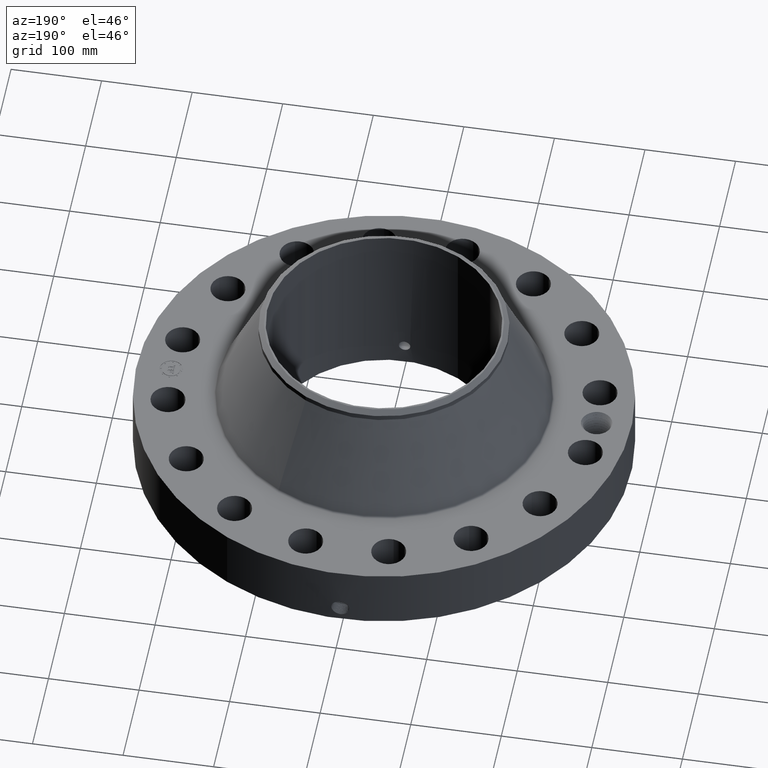
[diagram: clean part render]
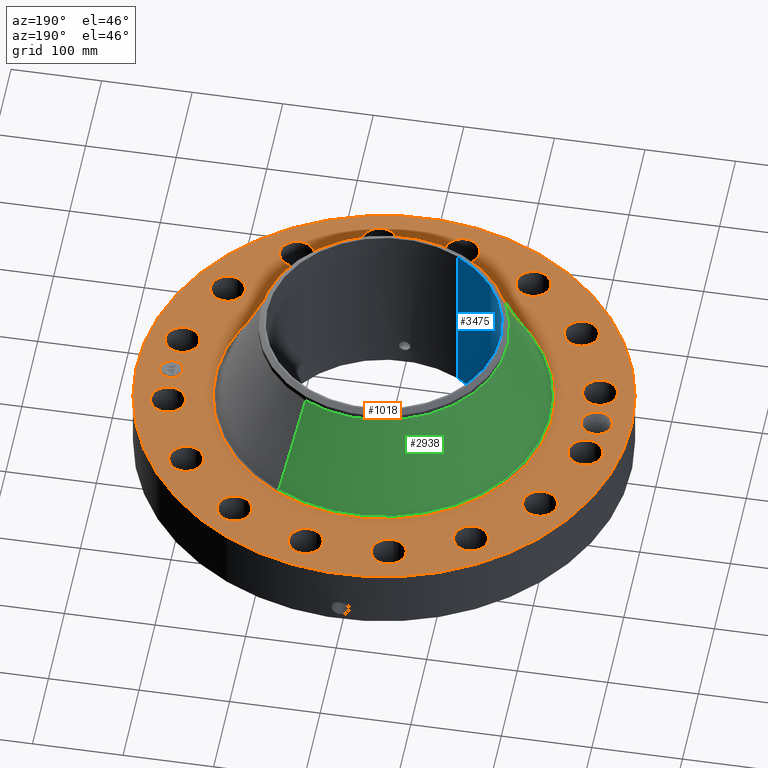
[diagram: same view with three faces highlighted in distinct colors, each labeled with its STEP entity id]
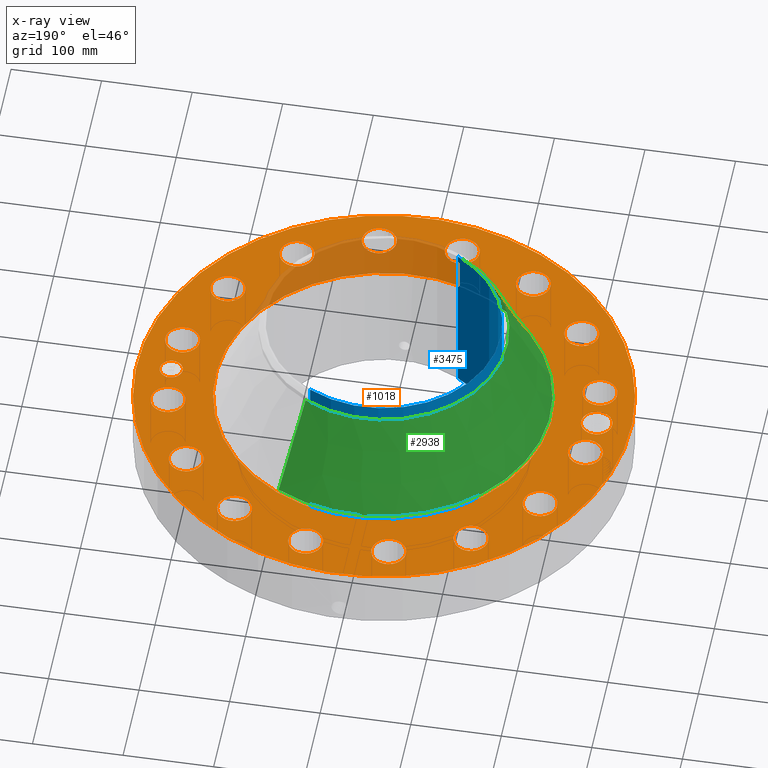
[diagram: x-ray of the same camera — body ghosted, the three highlighted faces saturated]
A machine part, auxiliary view with three faces highlighted in distinct colors.
The next image is the same camera in x-ray (body ghosted, the three faces saturated) — at least one of them is partly hidden behind the body in this view.
Their STEP definitions:

[orange] entity #1018 — the highlighted planar face has unit normal (0, 0, -1).
#58=AXIS2_PLACEMENT_3D('Circle Axis2P3D',#56,#57,$) ;
#542=AXIS2_PLACEMENT_3D('Circle Axis2P3D',#540,#541,$) ;
#642=AXIS2_PLACEMENT_3D('Plane Axis2P3D',#639,#640,#641) ;
#678=AXIS2_PLACEMENT_3D('Circle Axis2P3D',#676,#677,$) ;
#685=AXIS2_PLACEMENT_3D('Circle Axis2P3D',#683,#684,$) ;
#696=AXIS2_PLACEMENT_3D('Circle Axis2P3D',#694,#695,$) ;
#705=AXIS2_PLACEMENT_3D('Circle Axis2P3D',#703,#704,$) ;
#714=AXIS2_PLACEMENT_3D('Circle Axis2P3D',#712,#713,$) ;
#723=AXIS2_PLACEMENT_3D('Circle Axis2P3D',#721,#722,$) ;
#732=AXIS2_PLACEMENT_3D('Circle Axis2P3D',#730,#731,$) ;
#741=AXIS2_PLACEMENT_3D('Circle Axis2P3D',#739,#740,$) ;
#750=AXIS2_PLACEMENT_3D('Circle Axis2P3D',#748,#749,$) ;
#759=AXIS2_PLACEMENT_3D('Circle Axis2P3D',#757,#758,$) ;
#768=AXIS2_PLACEMENT_3D('Circle Axis2P3D',#766,#767,$) ;
#777=AXIS2_PLACEMENT_3D('Circle Axis2P3D',#775,#776,$) ;
#786=AXIS2_PLACEMENT_3D('Circle Axis2P3D',#784,#785,$) ;
#795=AXIS2_PLACEMENT_3D('Circle Axis2P3D',#793,#794,$) ;
#804=AXIS2_PLACEMENT_3D('Circle Axis2P3D',#802,#803,$) ;
#813=AXIS2_PLACEMENT_3D('Circle Axis2P3D',#811,#812,$) ;
#822=AXIS2_PLACEMENT_3D('Circle Axis2P3D',#820,#821,$) ;
#831=AXIS2_PLACEMENT_3D('Circle Axis2P3D',#829,#830,$) ;
#840=AXIS2_PLACEMENT_3D('Circle Axis2P3D',#838,#839,$) ;
#849=AXIS2_PLACEMENT_3D('Circle Axis2P3D',#847,#848,$) ;
#858=AXIS2_PLACEMENT_3D('Circle Axis2P3D',#856,#857,$) ;
#867=AXIS2_PLACEMENT_3D('Circle Axis2P3D',#865,#866,$) ;
#876=AXIS2_PLACEMENT_3D('Circle Axis2P3D',#874,#875,$) ;
#885=AXIS2_PLACEMENT_3D('Circle Axis2P3D',#883,#884,$) ;
#894=AXIS2_PLACEMENT_3D('Circle Axis2P3D',#892,#893,$) ;
#903=AXIS2_PLACEMENT_3D('Circle Axis2P3D',#901,#902,$) ;
#912=AXIS2_PLACEMENT_3D('Circle Axis2P3D',#910,#911,$) ;
#921=AXIS2_PLACEMENT_3D('Circle Axis2P3D',#919,#920,$) ;
#930=AXIS2_PLACEMENT_3D('Circle Axis2P3D',#928,#929,$) ;
#939=AXIS2_PLACEMENT_3D('Circle Axis2P3D',#937,#938,$) ;
#948=AXIS2_PLACEMENT_3D('Circle Axis2P3D',#946,#947,$) ;
#957=AXIS2_PLACEMENT_3D('Circle Axis2P3D',#955,#956,$) ;
#966=AXIS2_PLACEMENT_3D('Circle Axis2P3D',#964,#965,$) ;
#975=AXIS2_PLACEMENT_3D('Circle Axis2P3D',#973,#974,$) ;
#984=AXIS2_PLACEMENT_3D('Circle Axis2P3D',#982,#983,$) ;
#993=AXIS2_PLACEMENT_3D('Circle Axis2P3D',#991,#992,$) ;
#1002=AXIS2_PLACEMENT_3D('Circle Axis2P3D',#1000,#1001,$) ;
#1011=AXIS2_PLACEMENT_3D('Circle Axis2P3D',#1009,#1010,$) ;
#53=CARTESIAN_POINT('Vertex',(-5.15382454002,-9.43401254036,3.00000000001)) ;
#56=CARTESIAN_POINT('Axis2P3D Location',(0.,0.,3.00000000001)) ;
#60=CARTESIAN_POINT('Vertex',(5.15382454002,9.43401254036,3.00000000001)) ;
#540=CARTESIAN_POINT('Axis2P3D Location',(0.,0.,3.00000000001)) ;
#639=CARTESIAN_POINT('Axis2P3D Location',(0.,10.75,3.00000000001)) ;
#649=CARTESIAN_POINT('Control Point',(-8.56250000003,0.,3.00000000001)) ;
#650=CARTESIAN_POINT('Control Point',(-8.56486308622,0.0644949363337,3.00000000001)) ;
#651=CARTESIAN_POINT('Control Point',(-8.57479440552,0.128582344866,3.00000000001)) ;
#652=CARTESIAN_POINT('Control Point',(-8.59223336689,0.191067000168,3.00000000001)) ;
#653=CARTESIAN_POINT('Control Point',(-8.62965644107,0.281919288805,3.00000000001)) ;
#654=CARTESIAN_POINT('Control Point',(-8.68225432957,0.36394630169,3.00000000001)) ;
#655=CARTESIAN_POINT('Control Point',(-8.70198762267,0.390886934348,3.00000000001)) ;
#656=CARTESIAN_POINT('Control Point',(-8.72331642012,0.416507205326,3.00000000001)) ;
#657=CARTESIAN_POINT('Control Point',(-8.74612160302,0.440684604928,3.00000000001)) ;
#658=CARTESIAN_POINT('Vertex',(-8.56250000003,0.,3.00000000001)) ;
#660=CARTESIAN_POINT('Vertex',(-8.74612160302,0.440684604928,3.00000000001)) ;
#664=CARTESIAN_POINT('Control Point',(-8.56250000003,0.,3.00000000001)) ;
#665=CARTESIAN_POINT('Control Point',(-8.56486374464,-0.0645129057141,3.00000000001)) ;
#666=CARTESIAN_POINT('Control Point',(-8.57479993211,-0.128618054944,3.00000000001)) ;
#667=CARTESIAN_POINT('Control Point',(-8.59223774309,-0.191096216161,3.00000000001)) ;
#668=CARTESIAN_POINT('Control Point',(-8.62967336765,-0.281976941446,3.00000000001)) ;
#669=CARTESIAN_POINT('Control Point',(-8.68226340328,-0.363983261821,3.00000000001)) ;
#670=CARTESIAN_POINT('Control Point',(-8.70202180579,-0.390949652071,3.00000000001)) ;
#671=CARTESIAN_POINT('Control Point',(-8.72337509323,-0.416588152177,3.00000000001)) ;
#672=CARTESIAN_POINT('Control Point',(-8.74620303259,-0.44077769408,3.00000000001)) ;
#673=CARTESIAN_POINT('Vertex',(-8.74620303259,-0.44077769408,3.00000000001)) ;
#676=CARTESIAN_POINT('Axis2P3D Location',(-9.25000000004,0.,3.00000000001)) ;
#680=CARTESIAN_POINT('Vertex',(-9.83745376697,0.320927455543,3.00000000001)) ;
#683=CARTESIAN_POINT('Axis2P3D Location',(-9.25000000004,0.,3.00000000001)) ;
#694=CARTESIAN_POINT('Axis2P3D Location',(9.07226384377,-1.80458547866,3.00000000001)) ;
#698=CARTESIAN_POINT('Vertex',(8.41407692235,-1.4450163247,3.00000000001)) ;
#700=CARTESIAN_POINT('Vertex',(9.73045076519,-2.16415463261,3.00000000001)) ;
#703=CARTESIAN_POINT('Axis2P3D Location',(9.07226384377,-1.80458547866,3.00000000001)) ;
#712=CARTESIAN_POINT('Axis2P3D Location',(0.,0.,3.00000000001)) ;
#716=CARTESIAN_POINT('Vertex',(-3.51274416302,-6.43003505992,3.00000000001)) ;
#718=CARTESIAN_POINT('Vertex',(3.51274416302,6.43003505992,3.00000000001)) ;
#721=CARTESIAN_POINT('Axis2P3D Location',(0.,0.,3.00000000001)) ;
#730=CARTESIAN_POINT('Axis2P3D Location',(7.69109391383,-5.13902465545,3.00000000001)) ;
#734=CARTESIAN_POINT('Vertex',(8.16157818109,-5.72310046754,3.00000000001)) ;
#736=CARTESIAN_POINT('Vertex',(7.22060964657,-4.55494884336,3.00000000001)) ;
#739=CARTESIAN_POINT('Axis2P3D Location',(7.69109391383,-5.13902465545,3.00000000001)) ;
#748=CARTESIAN_POINT('Axis2P3D Location',(5.13902465545,-7.69109391383,3.00000000001)) ;
#752=CARTESIAN_POINT('Vertex',(5.35017930381,-8.41075613632,3.00000000001)) ;
#754=CARTESIAN_POINT('Vertex',(4.92787000709,-6.97143169134,3.00000000001)) ;
#757=CARTESIAN_POINT('Axis2P3D Location',(5.13902465545,-7.69109391383,3.00000000001)) ;
#766=CARTESIAN_POINT('Axis2P3D Location',(1.80458547866,-9.07226384377,3.00000000001)) ;
#770=CARTESIAN_POINT('Vertex',(1.72426412702,-9.81795042704,3.00000000001)) ;
#772=CARTESIAN_POINT('Vertex',(1.88490683029,-8.32657726049,3.00000000001)) ;
#775=CARTESIAN_POINT('Axis2P3D Location',(1.80458547866,-9.07226384377,3.00000000001)) ;
#784=CARTESIAN_POINT('Axis2P3D Location',(-1.80458547866,-9.07226384377,3.00000000001)) ;
#788=CARTESIAN_POINT('Vertex',(-2.16415463261,-9.73045076519,3.00000000001)) ;
#790=CARTESIAN_POINT('Vertex',(-1.4450163247,-8.41407692235,3.00000000001)) ;
#793=CARTESIAN_POINT('Axis2P3D Location',(-1.80458547866,-9.07226384377,3.00000000001)) ;
#802=CARTESIAN_POINT('Axis2P3D Location',(-5.13902465545,-7.69109391383,3.00000000001)) ;
#806=CARTESIAN_POINT('Vertex',(-5.72310046754,-8.16157818109,3.00000000001)) ;
#808=CARTESIAN_POINT('Vertex',(-4.55494884336,-7.22060964657,3.00000000001)) ;
#811=CARTESIAN_POINT('Axis2P3D Location',(-5.13902465545,-7.69109391383,3.00000000001)) ;
#820=CARTESIAN_POINT('Axis2P3D Location',(-7.69109391383,-5.13902465545,3.00000000001)) ;
#824=CARTESIAN_POINT('Vertex',(-8.41075613632,-5.35017930381,3.00000000001)) ;
#826=CARTESIAN_POINT('Vertex',(-6.97143169134,-4.92787000709,3.00000000001)) ;
#829=CARTESIAN_POINT('Axis2P3D Location',(-7.69109391383,-5.13902465545,3.00000000001)) ;
#838=CARTESIAN_POINT('Axis2P3D Location',(-9.07226384377,-1.80458547866,3.00000000001)) ;
#842=CARTESIAN_POINT('Vertex',(-9.81795042704,-1.72426412702,3.00000000001)) ;
#844=CARTESIAN_POINT('Vertex',(-8.32657726049,-1.88490683029,3.00000000001)) ;
#847=CARTESIAN_POINT('Axis2P3D Location',(-9.07226384377,-1.80458547866,3.00000000001)) ;
#856=CARTESIAN_POINT('Axis2P3D Location',(-9.07226384377,1.80458547866,3.00000000001)) ;
#860=CARTESIAN_POINT('Vertex',(-9.73045076519,2.16415463261,3.00000000001)) ;
#862=CARTESIAN_POINT('Vertex',(-8.41407692235,1.4450163247,3.00000000001)) ;
#865=CARTESIAN_POINT('Axis2P3D Location',(-9.07226384377,1.80458547866,3.00000000001)) ;
#874=CARTESIAN_POINT('Axis2P3D Location',(-7.69109391383,5.13902465545,3.00000000001)) ;
#878=CARTESIAN_POINT('Vertex',(-8.16157818109,5.72310046754,3.00000000001)) ;
#880=CARTESIAN_POINT('Vertex',(-7.22060964657,4.55494884336,3.00000000001)) ;
#883=CARTESIAN_POINT('Axis2P3D Location',(-7.69109391383,5.13902465545,3.00000000001)) ;
#892=CARTESIAN_POINT('Axis2P3D Location',(-5.13902465545,7.69109391383,3.00000000001)) ;
#896=CARTESIAN_POINT('Vertex',(-5.35017930381,8.41075613632,3.00000000001)) ;
#898=CARTESIAN_POINT('Vertex',(-4.92787000709,6.97143169134,3.00000000001)) ;
#901=CARTESIAN_POINT('Axis2P3D Location',(-5.13902465545,7.69109391383,3.00000000001)) ;
#910=CARTESIAN_POINT('Axis2P3D Location',(-1.80458547866,9.07226384377,3.00000000001)) ;
#914=CARTESIAN_POINT('Vertex',(-1.72426412702,9.81795042704,3.00000000001)) ;
#916=CARTESIAN_POINT('Vertex',(-1.88490683029,8.32657726049,3.00000000001)) ;
#919=CARTESIAN_POINT('Axis2P3D Location',(-1.80458547866,9.07226384377,3.00000000001)) ;
#928=CARTESIAN_POINT('Axis2P3D Location',(1.80458547866,9.07226384377,3.00000000001)) ;
#932=CARTESIAN_POINT('Vertex',(2.16415463261,9.73045076519,3.00000000001)) ;
#934=CARTESIAN_POINT('Vertex',(1.4450163247,8.41407692235,3.00000000001)) ;
#937=CARTESIAN_POINT('Axis2P3D Location',(1.80458547866,9.07226384377,3.00000000001)) ;
#946=CARTESIAN_POINT('Axis2P3D Location',(5.13902465545,7.69109391383,3.00000000001)) ;
#950=CARTESIAN_POINT('Vertex',(5.72310046754,8.16157818109,3.00000000001)) ;
#952=CARTESIAN_POINT('Vertex',(4.55494884336,7.22060964657,3.00000000001)) ;
#955=CARTESIAN_POINT('Axis2P3D Location',(5.13902465545,7.69109391383,3.00000000001)) ;
#964=CARTESIAN_POINT('Axis2P3D Location',(7.69109391383,5.13902465545,3.00000000001)) ;
#968=CARTESIAN_POINT('Vertex',(8.41075613632,5.35017930381,3.00000000001)) ;
#970=CARTESIAN_POINT('Vertex',(6.97143169134,4.92787000709,3.00000000001)) ;
#973=CARTESIAN_POINT('Axis2P3D Location',(7.69109391383,5.13902465545,3.00000000001)) ;
#982=CARTESIAN_POINT('Axis2P3D Location',(9.07226384377,1.80458547866,3.00000000001)) ;
#986=CARTESIAN_POINT('Vertex',(9.81795042704,1.72426412702,3.00000000001)) ;
#988=CARTESIAN_POINT('Vertex',(8.32657726049,1.88490683029,3.00000000001)) ;
#991=CARTESIAN_POINT('Axis2P3D Location',(9.07226384377,1.80458547866,3.00000000001)) ;
#1000=CARTESIAN_POINT('Axis2P3D Location',(9.25000000004,-4.02827377754E-014,3.00000000001)) ;
#1004=CARTESIAN_POINT('Vertex',(9.25000000004,0.499999995002,3.00000000001)) ;
#1006=CARTESIAN_POINT('Vertex',(9.25000000004,-0.499999995002,3.00000000001)) ;
#1009=CARTESIAN_POINT('Axis2P3D Location',(9.25000000004,-4.02827377754E-014,3.00000000001)) ;
#57=DIRECTION('Axis2P3D Direction',(0.,0.,-0.0393700787402)) ;
#541=DIRECTION('Axis2P3D Direction',(0.,0.,-0.0393700787402)) ;
#640=DIRECTION('Axis2P3D Direction',(0.,0.,-0.0393700787402)) ;
#641=DIRECTION('Axis2P3D XDirection',(0.0393700787402,0.,0.)) ;
#677=DIRECTION('Axis2P3D Direction',(0.,0.,-0.0393700787402)) ;
#684=DIRECTION('Axis2P3D Direction',(0.,0.,-0.0393700787402)) ;
#695=DIRECTION('Axis2P3D Direction',(0.,0.,-0.0393700787402)) ;
#704=DIRECTION('Axis2P3D Direction',(0.,0.,-0.0393700787402)) ;
#713=DIRECTION('Axis2P3D Direction',(0.,0.,-0.0393700787402)) ;
#722=DIRECTION('Axis2P3D Direction',(0.,0.,-0.0393700787402)) ;
#731=DIRECTION('Axis2P3D Direction',(0.,0.,-0.0393700787402)) ;
#740=DIRECTION('Axis2P3D Direction',(0.,0.,-0.0393700787402)) ;
#749=DIRECTION('Axis2P3D Direction',(0.,0.,-0.0393700787402)) ;
#758=DIRECTION('Axis2P3D Direction',(0.,0.,-0.0393700787402)) ;
#767=DIRECTION('Axis2P3D Direction',(0.,0.,-0.0393700787402)) ;
#776=DIRECTION('Axis2P3D Direction',(0.,0.,-0.0393700787402)) ;
#785=DIRECTION('Axis2P3D Direction',(0.,0.,-0.0393700787402)) ;
#794=DIRECTION('Axis2P3D Direction',(0.,0.,-0.0393700787402)) ;
#803=DIRECTION('Axis2P3D Direction',(0.,0.,-0.0393700787402)) ;
#812=DIRECTION('Axis2P3D Direction',(0.,0.,-0.0393700787402)) ;
#821=DIRECTION('Axis2P3D Direction',(0.,0.,-0.0393700787402)) ;
#830=DIRECTION('Axis2P3D Direction',(0.,0.,-0.0393700787402)) ;
#839=DIRECTION('Axis2P3D Direction',(0.,0.,-0.0393700787402)) ;
#848=DIRECTION('Axis2P3D Direction',(0.,0.,-0.0393700787402)) ;
#857=DIRECTION('Axis2P3D Direction',(0.,0.,-0.0393700787402)) ;
#866=DIRECTION('Axis2P3D Direction',(0.,0.,-0.0393700787402)) ;
#875=DIRECTION('Axis2P3D Direction',(0.,0.,-0.0393700787402)) ;
#884=DIRECTION('Axis2P3D Direction',(0.,0.,-0.0393700787402)) ;
#893=DIRECTION('Axis2P3D Direction',(0.,0.,-0.0393700787402)) ;
#902=DIRECTION('Axis2P3D Direction',(0.,0.,-0.0393700787402)) ;
#911=DIRECTION('Axis2P3D Direction',(0.,0.,-0.0393700787402)) ;
#920=DIRECTION('Axis2P3D Direction',(0.,0.,-0.0393700787402)) ;
#929=DIRECTION('Axis2P3D Direction',(0.,0.,-0.0393700787402)) ;
#938=DIRECTION('Axis2P3D Direction',(0.,0.,-0.0393700787402)) ;
#947=DIRECTION('Axis2P3D Direction',(0.,0.,-0.0393700787402)) ;
#956=DIRECTION('Axis2P3D Direction',(0.,0.,-0.0393700787402)) ;
#965=DIRECTION('Axis2P3D Direction',(0.,0.,-0.0393700787402)) ;
#974=DIRECTION('Axis2P3D Direction',(0.,0.,-0.0393700787402)) ;
#983=DIRECTION('Axis2P3D Direction',(0.,0.,-0.0393700787402)) ;
#992=DIRECTION('Axis2P3D Direction',(0.,0.,-0.0393700787402)) ;
#1001=DIRECTION('Axis2P3D Direction',(0.,0.,-0.0393700787402)) ;
#1010=DIRECTION('Axis2P3D Direction',(0.,0.,-0.0393700787402)) ;
#645=ORIENTED_EDGE('',*,*,#544,.F.) ;
#646=ORIENTED_EDGE('',*,*,#62,.F.) ;
#689=ORIENTED_EDGE('',*,*,#662,.F.) ;
#690=ORIENTED_EDGE('',*,*,#675,.T.) ;
#691=ORIENTED_EDGE('',*,*,#682,.T.) ;
#692=ORIENTED_EDGE('',*,*,#687,.T.) ;
#709=ORIENTED_EDGE('',*,*,#702,.T.) ;
#710=ORIENTED_EDGE('',*,*,#707,.T.) ;
#727=ORIENTED_EDGE('',*,*,#720,.T.) ;
#728=ORIENTED_EDGE('',*,*,#725,.T.) ;
#745=ORIENTED_EDGE('',*,*,#738,.T.) ;
#746=ORIENTED_EDGE('',*,*,#743,.T.) ;
#763=ORIENTED_EDGE('',*,*,#756,.T.) ;
#764=ORIENTED_EDGE('',*,*,#761,.T.) ;
#781=ORIENTED_EDGE('',*,*,#774,.T.) ;
#782=ORIENTED_EDGE('',*,*,#779,.T.) ;
#799=ORIENTED_EDGE('',*,*,#792,.T.) ;
#800=ORIENTED_EDGE('',*,*,#797,.T.) ;
#817=ORIENTED_EDGE('',*,*,#810,.T.) ;
#818=ORIENTED_EDGE('',*,*,#815,.T.) ;
#835=ORIENTED_EDGE('',*,*,#828,.T.) ;
#836=ORIENTED_EDGE('',*,*,#833,.T.) ;
#853=ORIENTED_EDGE('',*,*,#846,.T.) ;
#854=ORIENTED_EDGE('',*,*,#851,.T.) ;
#871=ORIENTED_EDGE('',*,*,#864,.T.) ;
#872=ORIENTED_EDGE('',*,*,#869,.T.) ;
#889=ORIENTED_EDGE('',*,*,#882,.T.) ;
#890=ORIENTED_EDGE('',*,*,#887,.T.) ;
#907=ORIENTED_EDGE('',*,*,#900,.T.) ;
#908=ORIENTED_EDGE('',*,*,#905,.T.) ;
#925=ORIENTED_EDGE('',*,*,#918,.T.) ;
#926=ORIENTED_EDGE('',*,*,#923,.T.) ;
#943=ORIENTED_EDGE('',*,*,#936,.T.) ;
#944=ORIENTED_EDGE('',*,*,#941,.T.) ;
#961=ORIENTED_EDGE('',*,*,#954,.T.) ;
#962=ORIENTED_EDGE('',*,*,#959,.T.) ;
#979=ORIENTED_EDGE('',*,*,#972,.T.) ;
#980=ORIENTED_EDGE('',*,*,#977,.T.) ;
#997=ORIENTED_EDGE('',*,*,#990,.T.) ;
#998=ORIENTED_EDGE('',*,*,#995,.T.) ;
#1015=ORIENTED_EDGE('',*,*,#1008,.T.) ;
#1016=ORIENTED_EDGE('',*,*,#1013,.T.) ;
#693=FACE_BOUND('',#688,.T.) ;
#711=FACE_BOUND('',#708,.T.) ;
#729=FACE_BOUND('',#726,.T.) ;
#747=FACE_BOUND('',#744,.T.) ;
#765=FACE_BOUND('',#762,.T.) ;
#783=FACE_BOUND('',#780,.T.) ;
#801=FACE_BOUND('',#798,.T.) ;
#819=FACE_BOUND('',#816,.T.) ;
#837=FACE_BOUND('',#834,.T.) ;
#855=FACE_BOUND('',#852,.T.) ;
#873=FACE_BOUND('',#870,.T.) ;
#891=FACE_BOUND('',#888,.T.) ;
#909=FACE_BOUND('',#906,.T.) ;
#927=FACE_BOUND('',#924,.T.) ;
#945=FACE_BOUND('',#942,.T.) ;
#963=FACE_BOUND('',#960,.T.) ;
#981=FACE_BOUND('',#978,.T.) ;
#999=FACE_BOUND('',#996,.T.) ;
#1017=FACE_BOUND('',#1014,.T.) ;
#1018=ADVANCED_FACE('PartBody',(#647,#693,#711,#729,#747,#765,#783,#801,#819,#837,#855,#873,#891,#909,#927,#945,#963,#981,#999,#1017),#643,.F.) ;
#648=B_SPLINE_CURVE_WITH_KNOTS('',5,(#649,#650,#651,#652,#653,#654,#655,#656,#657),.UNSPECIFIED.,.F.,.U.,(6,3,6),(0.,11.2736213614,17.1557407015),.UNSPECIFIED.) ;
#663=B_SPLINE_CURVE_WITH_KNOTS('',5,(#664,#665,#666,#667,#668,#669,#670,#671,#672),.UNSPECIFIED.,.F.,.U.,(6,3,6),(0.,11.2767623832,17.1737660539),.UNSPECIFIED.) ;
#59=CIRCLE('generated circle',#58,10.75) ;
#543=CIRCLE('generated circle',#542,10.75) ;
#679=CIRCLE('generated circle',#678,0.669400000003) ;
#686=CIRCLE('generated circle',#685,0.669400000003) ;
#697=CIRCLE('generated circle',#696,0.750000000003) ;
#706=CIRCLE('generated circle',#705,0.750000000003) ;
#715=CIRCLE('generated circle',#714,7.32698590327) ;
#724=CIRCLE('generated circle',#723,7.32698590327) ;
#733=CIRCLE('generated circle',#732,0.750000000003) ;
#742=CIRCLE('generated circle',#741,0.750000000003) ;
#751=CIRCLE('generated circle',#750,0.750000000003) ;
#760=CIRCLE('generated circle',#759,0.750000000003) ;
#769=CIRCLE('generated circle',#768,0.750000000003) ;
#778=CIRCLE('generated circle',#777,0.750000000003) ;
#787=CIRCLE('generated circle',#786,0.750000000003) ;
#796=CIRCLE('generated circle',#795,0.750000000003) ;
#805=CIRCLE('generated circle',#804,0.750000000003) ;
#814=CIRCLE('generated circle',#813,0.750000000003) ;
#823=CIRCLE('generated circle',#822,0.750000000003) ;
#832=CIRCLE('generated circle',#831,0.750000000003) ;
#841=CIRCLE('generated circle',#840,0.750000000003) ;
#850=CIRCLE('generated circle',#849,0.750000000003) ;
#859=CIRCLE('generated circle',#858,0.750000000003) ;
#868=CIRCLE('generated circle',#867,0.750000000003) ;
#877=CIRCLE('generated circle',#876,0.750000000003) ;
#886=CIRCLE('generated circle',#885,0.750000000003) ;
#895=CIRCLE('generated circle',#894,0.750000000003) ;
#904=CIRCLE('generated circle',#903,0.750000000003) ;
#913=CIRCLE('generated circle',#912,0.750000000003) ;
#922=CIRCLE('generated circle',#921,0.750000000003) ;
#931=CIRCLE('generated circle',#930,0.750000000003) ;
#940=CIRCLE('generated circle',#939,0.750000000003) ;
#949=CIRCLE('generated circle',#948,0.750000000003) ;
#958=CIRCLE('generated circle',#957,0.750000000003) ;
#967=CIRCLE('generated circle',#966,0.750000000003) ;
#976=CIRCLE('generated circle',#975,0.750000000003) ;
#985=CIRCLE('generated circle',#984,0.750000000003) ;
#994=CIRCLE('generated circle',#993,0.750000000003) ;
#1003=CIRCLE('generated circle',#1002,0.499999995002) ;
#1012=CIRCLE('generated circle',#1011,0.499999995002) ;
#62=EDGE_CURVE('',#54,#61,#59,.T.) ;
#544=EDGE_CURVE('',#61,#54,#543,.T.) ;
#662=EDGE_CURVE('',#659,#661,#648,.T.) ;
#675=EDGE_CURVE('',#659,#674,#663,.T.) ;
#682=EDGE_CURVE('',#674,#681,#679,.T.) ;
#687=EDGE_CURVE('',#681,#661,#686,.T.) ;
#702=EDGE_CURVE('',#699,#701,#697,.T.) ;
#707=EDGE_CURVE('',#701,#699,#706,.T.) ;
#720=EDGE_CURVE('',#717,#719,#715,.T.) ;
#725=EDGE_CURVE('',#719,#717,#724,.T.) ;
#738=EDGE_CURVE('',#735,#737,#733,.T.) ;
#743=EDGE_CURVE('',#737,#735,#742,.T.) ;
#756=EDGE_CURVE('',#753,#755,#751,.T.) ;
#761=EDGE_CURVE('',#755,#753,#760,.T.) ;
#774=EDGE_CURVE('',#771,#773,#769,.T.) ;
#779=EDGE_CURVE('',#773,#771,#778,.T.) ;
#792=EDGE_CURVE('',#789,#791,#787,.T.) ;
#797=EDGE_CURVE('',#791,#789,#796,.T.) ;
#810=EDGE_CURVE('',#807,#809,#805,.T.) ;
#815=EDGE_CURVE('',#809,#807,#814,.T.) ;
#828=EDGE_CURVE('',#825,#827,#823,.T.) ;
#833=EDGE_CURVE('',#827,#825,#832,.T.) ;
#846=EDGE_CURVE('',#843,#845,#841,.T.) ;
#851=EDGE_CURVE('',#845,#843,#850,.T.) ;
#864=EDGE_CURVE('',#861,#863,#859,.T.) ;
#869=EDGE_CURVE('',#863,#861,#868,.T.) ;
#882=EDGE_CURVE('',#879,#881,#877,.T.) ;
#887=EDGE_CURVE('',#881,#879,#886,.T.) ;
#900=EDGE_CURVE('',#897,#899,#895,.T.) ;
#905=EDGE_CURVE('',#899,#897,#904,.T.) ;
#918=EDGE_CURVE('',#915,#917,#913,.T.) ;
#923=EDGE_CURVE('',#917,#915,#922,.T.) ;
#936=EDGE_CURVE('',#933,#935,#931,.T.) ;
#941=EDGE_CURVE('',#935,#933,#940,.T.) ;
#954=EDGE_CURVE('',#951,#953,#949,.T.) ;
#959=EDGE_CURVE('',#953,#951,#958,.T.) ;
#972=EDGE_CURVE('',#969,#971,#967,.T.) ;
#977=EDGE_CURVE('',#971,#969,#976,.T.) ;
#990=EDGE_CURVE('',#987,#989,#985,.T.) ;
#995=EDGE_CURVE('',#989,#987,#994,.T.) ;
#1008=EDGE_CURVE('',#1005,#1007,#1003,.T.) ;
#1013=EDGE_CURVE('',#1007,#1005,#1012,.T.) ;
#644=EDGE_LOOP('',(#645,#646)) ;
#688=EDGE_LOOP('',(#689,#690,#691,#692)) ;
#708=EDGE_LOOP('',(#709,#710)) ;
#726=EDGE_LOOP('',(#727,#728)) ;
#744=EDGE_LOOP('',(#745,#746)) ;
#762=EDGE_LOOP('',(#763,#764)) ;
#780=EDGE_LOOP('',(#781,#782)) ;
#798=EDGE_LOOP('',(#799,#800)) ;
#816=EDGE_LOOP('',(#817,#818)) ;
#834=EDGE_LOOP('',(#835,#836)) ;
#852=EDGE_LOOP('',(#853,#854)) ;
#870=EDGE_LOOP('',(#871,#872)) ;
#888=EDGE_LOOP('',(#889,#890)) ;
#906=EDGE_LOOP('',(#907,#908)) ;
#924=EDGE_LOOP('',(#925,#926)) ;
#942=EDGE_LOOP('',(#943,#944)) ;
#960=EDGE_LOOP('',(#961,#962)) ;
#978=EDGE_LOOP('',(#979,#980)) ;
#996=EDGE_LOOP('',(#997,#998)) ;
#1014=EDGE_LOOP('',(#1015,#1016)) ;
#647=FACE_OUTER_BOUND('',#644,.T.) ;
#643=PLANE('',#642) ;
#54=VERTEX_POINT('',#53) ;
#61=VERTEX_POINT('',#60) ;
#659=VERTEX_POINT('',#658) ;
#661=VERTEX_POINT('',#660) ;
#674=VERTEX_POINT('',#673) ;
#681=VERTEX_POINT('',#680) ;
#699=VERTEX_POINT('',#698) ;
#701=VERTEX_POINT('',#700) ;
#717=VERTEX_POINT('',#716) ;
#719=VERTEX_POINT('',#718) ;
#735=VERTEX_POINT('',#734) ;
#737=VERTEX_POINT('',#736) ;
#753=VERTEX_POINT('',#752) ;
#755=VERTEX_POINT('',#754) ;
#771=VERTEX_POINT('',#770) ;
#773=VERTEX_POINT('',#772) ;
#789=VERTEX_POINT('',#788) ;
#791=VERTEX_POINT('',#790) ;
#807=VERTEX_POINT('',#806) ;
#809=VERTEX_POINT('',#808) ;
#825=VERTEX_POINT('',#824) ;
#827=VERTEX_POINT('',#826) ;
#843=VERTEX_POINT('',#842) ;
#845=VERTEX_POINT('',#844) ;
#861=VERTEX_POINT('',#860) ;
#863=VERTEX_POINT('',#862) ;
#879=VERTEX_POINT('',#878) ;
#881=VERTEX_POINT('',#880) ;
#897=VERTEX_POINT('',#896) ;
#899=VERTEX_POINT('',#898) ;
#915=VERTEX_POINT('',#914) ;
#917=VERTEX_POINT('',#916) ;
#933=VERTEX_POINT('',#932) ;
#935=VERTEX_POINT('',#934) ;
#951=VERTEX_POINT('',#950) ;
#953=VERTEX_POINT('',#952) ;
#969=VERTEX_POINT('',#968) ;
#971=VERTEX_POINT('',#970) ;
#987=VERTEX_POINT('',#986) ;
#989=VERTEX_POINT('',#988) ;
#1005=VERTEX_POINT('',#1004) ;
#1007=VERTEX_POINT('',#1006) ;

[blue] entity #3475 — the highlighted cylindrical surface (partial cylindrical patch) has radius 128.727 mm, axis along (0, 0, -1).
#2618=AXIS2_PLACEMENT_3D('Circle Axis2P3D',#2616,#2617,$) ;
#3352=AXIS2_PLACEMENT_3D('Cylinder Axis2P3D',#3349,#3350,#3351) ;
#3424=AXIS2_PLACEMENT_3D('Circle Axis2P3D',#3422,#3423,$) ;
#2611=CARTESIAN_POINT('Vertex',(2.42972862966,4.44758842368,-1.34275792585E-014)) ;
#2613=CARTESIAN_POINT('Vertex',(-2.42972862966,-4.44758842368,-1.34275792585E-014)) ;
#2616=CARTESIAN_POINT('Axis2P3D Location',(0.,0.,0.)) ;
#3349=CARTESIAN_POINT('Axis2P3D Location',(0.,0.,3.75000000001)) ;
#3358=CARTESIAN_POINT('Vertex',(2.42972862966,4.44758842368,7.50000000003)) ;
#3360=CARTESIAN_POINT('Vertex',(-2.42972862966,-4.44758842368,7.50000000003)) ;
#3363=CARTESIAN_POINT('Line Origine',(2.42972862966,4.44758842368,3.75000000001)) ;
#3368=CARTESIAN_POINT('Line Origine',(-2.42972862966,-4.44758842368,3.75000000001)) ;
#3422=CARTESIAN_POINT('Axis2P3D Location',(0.,0.,7.50000000003)) ;
#3434=CARTESIAN_POINT('Control Point',(0.219395640473,5.06324891282,1.05985638466)) ;
#3435=CARTESIAN_POINT('Control Point',(0.2069217195,5.06378942029,1.08268974384)) ;
#3436=CARTESIAN_POINT('Control Point',(0.191478260006,5.06442011497,1.10389868036)) ;
#3437=CARTESIAN_POINT('Control Point',(0.173345217342,5.0650922661,1.12297023904)) ;
#3438=CARTESIAN_POINT('Control Point',(0.112136795098,5.06703633096,1.1724489364)) ;
#3439=CARTESIAN_POINT('Control Point',(0.0349822800536,5.06829938306,1.19597344248)) ;
#3440=CARTESIAN_POINT('Control Point',(-0.019559894261,5.06839375583,1.19761228124)) ;
#3441=CARTESIAN_POINT('Control Point',(-0.124145130446,5.06700352883,1.17247015521)) ;
#3442=CARTESIAN_POINT('Control Point',(-0.203189946742,5.06412590488,1.09955920574)) ;
#3443=CARTESIAN_POINT('Control Point',(-0.232166968321,5.06270914309,1.05334455245)) ;
#3444=CARTESIAN_POINT('Control Point',(-0.25583323828,5.06154277102,0.975188263746)) ;
#3445=CARTESIAN_POINT('Control Point',(-0.248295655358,5.0619139393,0.895799642899)) ;
#3446=CARTESIAN_POINT('Control Point',(-0.242061572595,5.06222543809,0.86921652216)) ;
#3447=CARTESIAN_POINT('Control Point',(-0.232323388924,5.06268874054,0.84380770016)) ;
#3448=CARTESIAN_POINT('Control Point',(-0.219395640473,5.06324891282,0.820143615352)) ;
#3449=CARTESIAN_POINT('Vertex',(0.219395640473,5.06324891282,1.05985638466)) ;
#3451=CARTESIAN_POINT('Vertex',(-0.219395640473,5.06324891282,0.820143615352)) ;
#3455=CARTESIAN_POINT('Control Point',(-0.219395640473,5.06324891282,0.820143615352)) ;
#3456=CARTESIAN_POINT('Control Point',(-0.2069217195,5.06378942029,0.797310256168)) ;
#3457=CARTESIAN_POINT('Control Point',(-0.191478260005,5.06442011497,0.77610131965)) ;
#3458=CARTESIAN_POINT('Control Point',(-0.173345217342,5.0650922661,0.757029760965)) ;
#3459=CARTESIAN_POINT('Control Point',(-0.112136795103,5.06703633096,0.707551063612)) ;
#3460=CARTESIAN_POINT('Control Point',(-0.0349822800649,5.06829938306,0.684026557527)) ;
#3461=CARTESIAN_POINT('Control Point',(0.0195598942714,5.06839375583,0.682387718766)) ;
#3462=CARTESIAN_POINT('Control Point',(0.124145130398,5.06700352883,0.707529844785)) ;
#3463=CARTESIAN_POINT('Control Point',(0.203189946664,5.06412590488,0.780440794197)) ;
#3464=CARTESIAN_POINT('Control Point',(0.232166968351,5.06270914309,0.826655447655)) ;
#3465=CARTESIAN_POINT('Control Point',(0.255833238288,5.06154277102,0.904811736355)) ;
#3466=CARTESIAN_POINT('Control Point',(0.24829565535,5.0619139393,0.984200357196)) ;
#3467=CARTESIAN_POINT('Control Point',(0.242061572626,5.06222543809,1.01078347777)) ;
#3468=CARTESIAN_POINT('Control Point',(0.232323388945,5.06268874054,1.03619229981)) ;
#3469=CARTESIAN_POINT('Control Point',(0.219395640473,5.06324891282,1.05985638466)) ;
#2617=DIRECTION('Axis2P3D Direction',(0.,0.,-0.0393700787402)) ;
#3350=DIRECTION('Axis2P3D Direction',(0.,0.,-0.0393700787402)) ;
#3351=DIRECTION('Axis2P3D XDirection',(-0.0188750212049,-0.0345504945626,0.)) ;
#3364=DIRECTION('Vector Direction',(0.,0.,-0.0393700787402)) ;
#3369=DIRECTION('Vector Direction',(0.,0.,-0.0393700787402)) ;
#3423=DIRECTION('Axis2P3D Direction',(0.,0.,-0.0393700787402)) ;
#3365=VECTOR('Line Direction',#3364,0.0393700787402) ;
#3370=VECTOR('Line Direction',#3369,0.0393700787402) ;
#3428=ORIENTED_EDGE('',*,*,#3426,.F.) ;
#3429=ORIENTED_EDGE('',*,*,#3372,.T.) ;
#3430=ORIENTED_EDGE('',*,*,#2620,.T.) ;
#3431=ORIENTED_EDGE('',*,*,#3367,.F.) ;
#3472=ORIENTED_EDGE('',*,*,#3453,.F.) ;
#3473=ORIENTED_EDGE('',*,*,#3470,.F.) ;
#3474=FACE_BOUND('',#3471,.T.) ;
#3475=ADVANCED_FACE('PartBody',(#3432,#3474),#3353,.F.) ;
#3433=B_SPLINE_CURVE_WITH_KNOTS('',5,(#3434,#3435,#3436,#3437,#3438,#3439,#3440,#3441,#3442,#3443,#3444,#3445,#3446,#3447,#3448),.UNSPECIFIED.,.F.,.U.,(6,3,3,3,6),(0.,4.67405947036,14.0221239077,23.3721121589,28.2162237419),.UNSPECIFIED.) ;
#3454=B_SPLINE_CURVE_WITH_KNOTS('',5,(#3455,#3456,#3457,#3458,#3459,#3460,#3461,#3462,#3463,#3464,#3465,#3466,#3467,#3468,#3469),.UNSPECIFIED.,.F.,.U.,(6,3,3,3,6),(0.,4.67405947038,14.0221239067,23.3721121487,28.2162237395),.UNSPECIFIED.) ;
#2619=CIRCLE('generated circle',#2618,5.06800000002) ;
#3425=CIRCLE('generated circle',#3424,5.06800000002) ;
#3353=CYLINDRICAL_SURFACE('generated cylinder',#3352,5.06800000002) ;
#2620=EDGE_CURVE('',#2614,#2612,#2619,.T.) ;
#3367=EDGE_CURVE('',#3359,#2612,#3366,.T.) ;
#3372=EDGE_CURVE('',#3361,#2614,#3371,.T.) ;
#3426=EDGE_CURVE('',#3361,#3359,#3425,.T.) ;
#3453=EDGE_CURVE('',#3450,#3452,#3433,.T.) ;
#3470=EDGE_CURVE('',#3452,#3450,#3454,.T.) ;
#3427=EDGE_LOOP('',(#3428,#3429,#3430,#3431)) ;
#3471=EDGE_LOOP('',(#3472,#3473)) ;
#3432=FACE_OUTER_BOUND('',#3427,.T.) ;
#3366=LINE('Line',#3363,#3365) ;
#3371=LINE('Line',#3368,#3370) ;
#2612=VERTEX_POINT('',#2611) ;
#2614=VERTEX_POINT('',#2613) ;
#3359=VERTEX_POINT('',#3358) ;
#3361=VERTEX_POINT('',#3360) ;
#3450=VERTEX_POINT('',#3449) ;
#3452=VERTEX_POINT('',#3451) ;

[green] entity #2938 — the highlighted conical surface has half-angle 24.636 deg.
#2291=AXIS2_PLACEMENT_3D('Circle Axis2P3D',#2289,#2290,$) ;
#2899=AXIS2_PLACEMENT_3D('Cone Axis2P3D',#2896,#2897,#2898) ;
#2929=AXIS2_PLACEMENT_3D('Circle Axis2P3D',#2927,#2928,$) ;
#2267=CARTESIAN_POINT('Vertex',(3.46044975849,6.33431079453,3.06997840198)) ;
#2274=CARTESIAN_POINT('Vertex',(-3.46044975849,-6.33431079453,3.06997840198)) ;
#2289=CARTESIAN_POINT('Axis2P3D Location',(0.,0.,3.06997840198)) ;
#2896=CARTESIAN_POINT('Axis2P3D Location',(0.,0.,7.08862959015)) ;
#2901=CARTESIAN_POINT('Line Origine',(3.01868101425,5.52565853235,5.07930399607)) ;
#2905=CARTESIAN_POINT('Vertex',(2.57691227001,4.71700627018,7.08862959015)) ;
#2912=CARTESIAN_POINT('Vertex',(-2.57691227001,-4.71700627018,7.08862959015)) ;
#2915=CARTESIAN_POINT('Line Origine',(-3.01868101425,-5.52565853235,5.07930399607)) ;
#2927=CARTESIAN_POINT('Axis2P3D Location',(0.,0.,7.08862959015)) ;
#2290=DIRECTION('Axis2P3D Direction',(0.,0.,-0.0393700787402)) ;
#2897=DIRECTION('Axis2P3D Direction',(0.,0.,-0.0393700787402)) ;
#2898=DIRECTION('Axis2P3D XDirection',(-0.0188750212049,-0.0345504945626,0.)) ;
#2902=DIRECTION('Vector Direction',(0.00786798936252,0.0144022579227,-0.0357864892121)) ;
#2916=DIRECTION('Vector Direction',(-0.00786798936252,-0.0144022579227,-0.0357864892121)) ;
#2928=DIRECTION('Axis2P3D Direction',(0.,0.,-0.0393700787402)) ;
#2903=VECTOR('Line Direction',#2902,0.0393700787402) ;
#2917=VECTOR('Line Direction',#2916,0.0393700787402) ;
#2933=ORIENTED_EDGE('',*,*,#2293,.F.) ;
#2934=ORIENTED_EDGE('',*,*,#2919,.T.) ;
#2935=ORIENTED_EDGE('',*,*,#2931,.T.) ;
#2936=ORIENTED_EDGE('',*,*,#2907,.F.) ;
#2938=ADVANCED_FACE('PartBody',(#2937),#2900,.T.) ;
#2292=CIRCLE('generated circle',#2291,7.21790868415) ;
#2930=CIRCLE('generated circle',#2929,5.37500000002) ;
#2900=CONICAL_SURFACE('Cone',#2899,5.37500000002,0.429973429099) ;
#2293=EDGE_CURVE('',#2275,#2268,#2292,.T.) ;
#2907=EDGE_CURVE('',#2268,#2906,#2904,.F.) ;
#2919=EDGE_CURVE('',#2275,#2913,#2918,.F.) ;
#2931=EDGE_CURVE('',#2913,#2906,#2930,.T.) ;
#2932=EDGE_LOOP('',(#2933,#2934,#2935,#2936)) ;
#2937=FACE_OUTER_BOUND('',#2932,.T.) ;
#2904=LINE('Line',#2901,#2903) ;
#2918=LINE('Line',#2915,#2917) ;
#2268=VERTEX_POINT('',#2267) ;
#2275=VERTEX_POINT('',#2274) ;
#2906=VERTEX_POINT('',#2905) ;
#2913=VERTEX_POINT('',#2912) ;